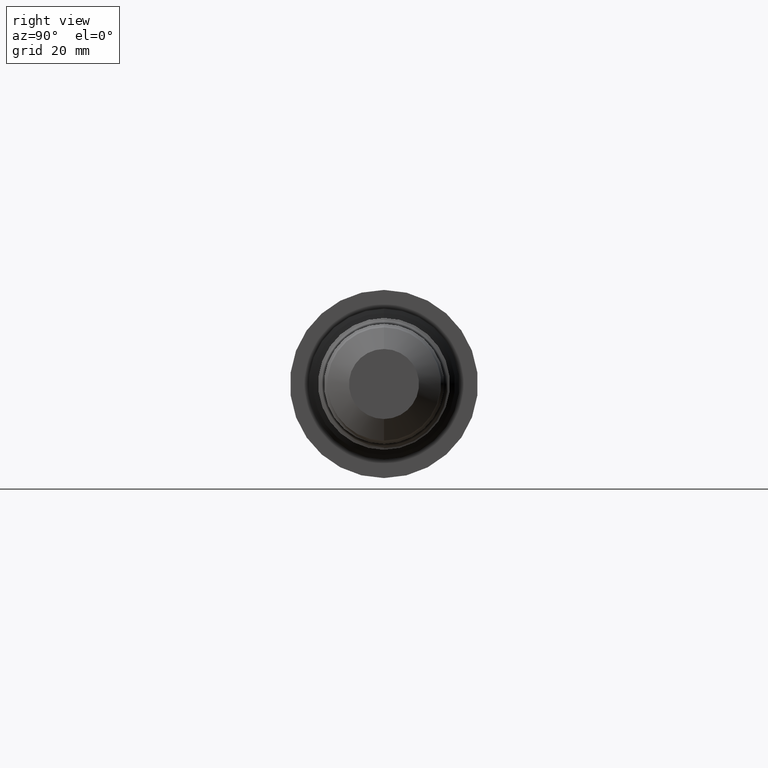
[diagram: clean part render]
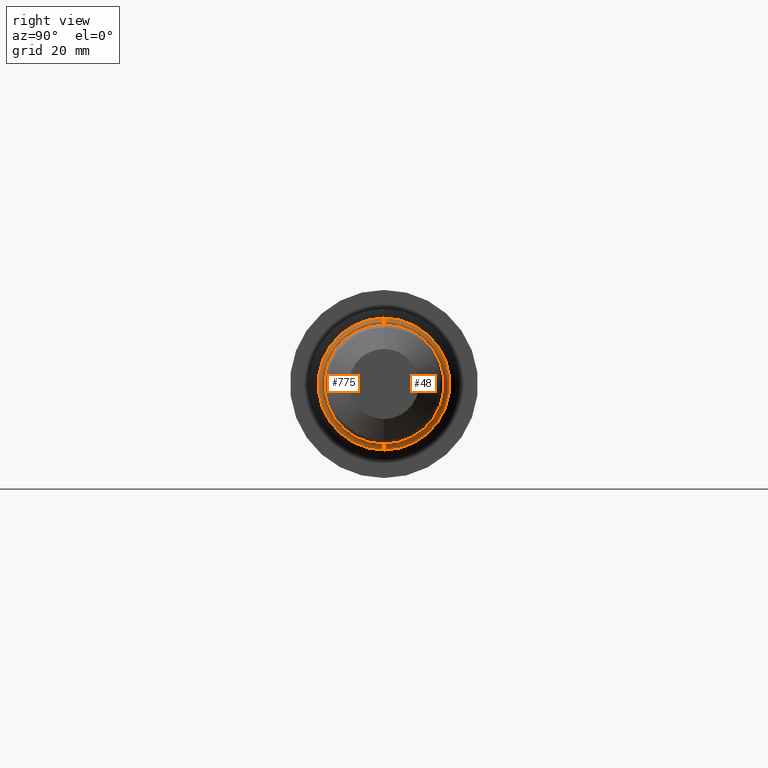
[diagram: same view with one multi-face feature highlighted, each face labeled with its STEP entity id]
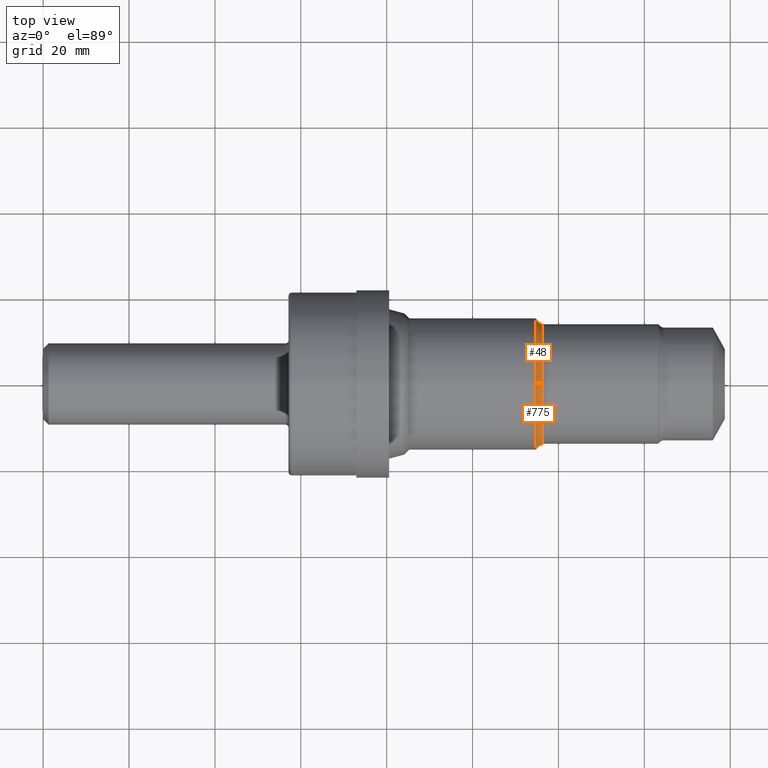
[diagram: same view with one multi-face feature highlighted, each face labeled with its STEP entity id]
A machine part, right view. The highlighted faces form ONE feature: a constant-radius fillet chain: 2 tangent blend faces with common blend radius 1.5748 mm. The faces share edges in the B-rep.
A second angle (top view) of the same feature is appended — it is thin or edge-on in the first view.
Their STEP definitions:
[1] entity #775 (Torus):
#49 = ORIENTED_EDGE ( 'NONE', *, *, #658, .F. ) ;
#86 = ORIENTED_EDGE ( 'NONE', *, *, #763, .T. ) ;
#89 = CARTESIAN_POINT ( 'NONE',  ( 4.516000000000000902, 0.0000000000000000000, 0.0000000000000000000 ) ) ;
#100 = AXIS2_PLACEMENT_3D ( 'NONE', #305, #571, #575 ) ;
#109 = AXIS2_PLACEMENT_3D ( 'NONE', #89, #437, #235 ) ;
#145 = CIRCLE ( 'NONE', #109, 0.6045000000000000373 ) ;
#162 = VERTEX_POINT ( 'NONE', #549 ) ;
#168 = CARTESIAN_POINT ( 'NONE',  ( 4.516000000000000902, 0.0000000000000000000, 0.6045000000000000373 ) ) ;
#204 = AXIS2_PLACEMENT_3D ( 'NONE', #778, #796, #338 ) ;
#206 = DIRECTION ( 'NONE',  ( 0.0000000000000000000, -1.000000000000000000, 0.0000000000000000000 ) ) ;
#219 = ORIENTED_EDGE ( 'NONE', *, *, #286, .F. ) ;
#235 = DIRECTION ( 'NONE',  ( 0.0000000000000000000, 0.0000000000000000000, 1.000000000000000000 ) ) ;
#238 = EDGE_LOOP ( 'NONE', ( #219, #86, #922, #49 ) ) ;
#271 = VERTEX_POINT ( 'NONE', #168 ) ;
#286 = EDGE_CURVE ( 'NONE', #730, #271, #145, .T. ) ;
#303 = FACE_OUTER_BOUND ( 'NONE', #238, .T. ) ;
#305 = CARTESIAN_POINT ( 'NONE',  ( 4.577428332225449203, 0.0000000000000000000, 0.0000000000000000000 ) ) ;
#338 = DIRECTION ( 'NONE',  ( 0.0000000000000000000, -1.224646799147353454E-16, 1.000000000000000000 ) ) ;
#339 = CIRCLE ( 'NONE', #100, 0.5508999999999999453 ) ;
#358 = DIRECTION ( 'NONE',  ( -1.000000000000000000, -0.0000000000000000000, -0.0000000000000000000 ) ) ;
#362 = CARTESIAN_POINT ( 'NONE',  ( 4.577428332225449203, 0.0000000000000000000, 0.6129000000000001114 ) ) ;
#405 = CARTESIAN_POINT ( 'NONE',  ( 4.577428332225449203, 0.0000000000000000000, 0.0000000000000000000 ) ) ;
#437 = DIRECTION ( 'NONE',  ( -1.000000000000000000, -0.0000000000000000000, -0.0000000000000000000 ) ) ;
#439 = DIRECTION ( 'NONE',  ( 0.0000000000000000000, 0.0000000000000000000, -1.000000000000000000 ) ) ;
#440 = AXIS2_PLACEMENT_3D ( 'NONE', #362, #206, #439 ) ;
#489 = TOROIDAL_SURFACE ( 'NONE', #603, 0.6129000000000001114, 0.06200000000000011058 ) ;
#509 = CIRCLE ( 'NONE', #204, 0.06200000000000011752 ) ;
#531 = DIRECTION ( 'NONE',  ( 0.0000000000000000000, 0.0000000000000000000, 1.000000000000000000 ) ) ;
#549 = CARTESIAN_POINT ( 'NONE',  ( 4.577428332225449203, 7.074784558674260945E-17, -0.5508999999999999453 ) ) ;
#571 = DIRECTION ( 'NONE',  ( -1.000000000000000000, -0.0000000000000000000, -0.0000000000000000000 ) ) ;
#575 = DIRECTION ( 'NONE',  ( 0.0000000000000000000, 0.0000000000000000000, 1.000000000000000000 ) ) ;
#603 = AXIS2_PLACEMENT_3D ( 'NONE', #405, #358, #531 ) ;
#608 = VERTEX_POINT ( 'NONE', #659 ) ;
#658 = EDGE_CURVE ( 'NONE', #271, #608, #826, .T. ) ;
#659 = CARTESIAN_POINT ( 'NONE',  ( 4.577428332225449203, 0.0000000000000000000, 0.5508999999999999453 ) ) ;
#730 = VERTEX_POINT ( 'NONE', #928 ) ;
#763 = EDGE_CURVE ( 'NONE', #730, #162, #509, .T. ) ;
#775 = ADVANCED_FACE ( 'NONE', ( #303 ), #489, .F. ) ;
#778 = CARTESIAN_POINT ( 'NONE',  ( 4.577428332225449203, 7.505860231974130045E-17, -0.6129000000000001114 ) ) ;
#796 = DIRECTION ( 'NONE',  ( -0.0000000000000000000, 1.000000000000000000, 1.224646799147353207E-16 ) ) ;
#826 = CIRCLE ( 'NONE', #440, 0.06200000000000011752 ) ;
#922 = ORIENTED_EDGE ( 'NONE', *, *, #935, .T. ) ;
#928 = CARTESIAN_POINT ( 'NONE',  ( 4.516000000000000902, 7.402989900845751618E-17, -0.6045000000000000373 ) ) ;
#935 = EDGE_CURVE ( 'NONE', #162, #608, #339, .T. ) ;
[2] entity #48 (Torus):
#48 = ADVANCED_FACE ( 'NONE', ( #310 ), #705, .F. ) ;
#54 = AXIS2_PLACEMENT_3D ( 'NONE', #748, #740, #812 ) ;
#62 = CARTESIAN_POINT ( 'NONE',  ( 4.577428332225449203, 0.0000000000000000000, 0.0000000000000000000 ) ) ;
#154 = EDGE_CURVE ( 'NONE', #271, #730, #269, .T. ) ;
#162 = VERTEX_POINT ( 'NONE', #549 ) ;
#168 = CARTESIAN_POINT ( 'NONE',  ( 4.516000000000000902, 0.0000000000000000000, 0.6045000000000000373 ) ) ;
#187 = ORIENTED_EDGE ( 'NONE', *, *, #154, .F. ) ;
#204 = AXIS2_PLACEMENT_3D ( 'NONE', #778, #796, #338 ) ;
#206 = DIRECTION ( 'NONE',  ( 0.0000000000000000000, -1.000000000000000000, 0.0000000000000000000 ) ) ;
#269 = CIRCLE ( 'NONE', #618, 0.6045000000000000373 ) ;
#271 = VERTEX_POINT ( 'NONE', #168 ) ;
#310 = FACE_OUTER_BOUND ( 'NONE', #918, .T. ) ;
#327 = AXIS2_PLACEMENT_3D ( 'NONE', #62, #352, #794 ) ;
#335 = EDGE_CURVE ( 'NONE', #608, #162, #688, .T. ) ;
#338 = DIRECTION ( 'NONE',  ( 0.0000000000000000000, -1.224646799147353454E-16, 1.000000000000000000 ) ) ;
#352 = DIRECTION ( 'NONE',  ( -1.000000000000000000, -0.0000000000000000000, -0.0000000000000000000 ) ) ;
#362 = CARTESIAN_POINT ( 'NONE',  ( 4.577428332225449203, 0.0000000000000000000, 0.6129000000000001114 ) ) ;
#403 = ORIENTED_EDGE ( 'NONE', *, *, #763, .F. ) ;
#421 = CARTESIAN_POINT ( 'NONE',  ( 4.516000000000000902, 0.0000000000000000000, 0.0000000000000000000 ) ) ;
#439 = DIRECTION ( 'NONE',  ( 0.0000000000000000000, 0.0000000000000000000, -1.000000000000000000 ) ) ;
#440 = AXIS2_PLACEMENT_3D ( 'NONE', #362, #206, #439 ) ;
#509 = CIRCLE ( 'NONE', #204, 0.06200000000000011752 ) ;
#549 = CARTESIAN_POINT ( 'NONE',  ( 4.577428332225449203, 7.074784558674260945E-17, -0.5508999999999999453 ) ) ;
#586 = ORIENTED_EDGE ( 'NONE', *, *, #658, .T. ) ;
#608 = VERTEX_POINT ( 'NONE', #659 ) ;
#618 = AXIS2_PLACEMENT_3D ( 'NONE', #421, #706, #923 ) ;
#658 = EDGE_CURVE ( 'NONE', #271, #608, #826, .T. ) ;
#659 = CARTESIAN_POINT ( 'NONE',  ( 4.577428332225449203, 0.0000000000000000000, 0.5508999999999999453 ) ) ;
#688 = CIRCLE ( 'NONE', #54, 0.5508999999999999453 ) ;
#705 = TOROIDAL_SURFACE ( 'NONE', #327, 0.6129000000000001114, 0.06200000000000011058 ) ;
#706 = DIRECTION ( 'NONE',  ( -1.000000000000000000, -0.0000000000000000000, -0.0000000000000000000 ) ) ;
#730 = VERTEX_POINT ( 'NONE', #928 ) ;
#740 = DIRECTION ( 'NONE',  ( -1.000000000000000000, -0.0000000000000000000, -0.0000000000000000000 ) ) ;
#748 = CARTESIAN_POINT ( 'NONE',  ( 4.577428332225449203, 0.0000000000000000000, 0.0000000000000000000 ) ) ;
#763 = EDGE_CURVE ( 'NONE', #730, #162, #509, .T. ) ;
#778 = CARTESIAN_POINT ( 'NONE',  ( 4.577428332225449203, 7.505860231974130045E-17, -0.6129000000000001114 ) ) ;
#794 = DIRECTION ( 'NONE',  ( 0.0000000000000000000, 0.0000000000000000000, 1.000000000000000000 ) ) ;
#796 = DIRECTION ( 'NONE',  ( -0.0000000000000000000, 1.000000000000000000, 1.224646799147353207E-16 ) ) ;
#812 = DIRECTION ( 'NONE',  ( 0.0000000000000000000, 0.0000000000000000000, 1.000000000000000000 ) ) ;
#826 = CIRCLE ( 'NONE', #440, 0.06200000000000011752 ) ;
#859 = ORIENTED_EDGE ( 'NONE', *, *, #335, .T. ) ;
#918 = EDGE_LOOP ( 'NONE', ( #403, #187, #586, #859 ) ) ;
#923 = DIRECTION ( 'NONE',  ( 0.0000000000000000000, 0.0000000000000000000, 1.000000000000000000 ) ) ;
#928 = CARTESIAN_POINT ( 'NONE',  ( 4.516000000000000902, 7.402989900845751618E-17, -0.6045000000000000373 ) ) ;